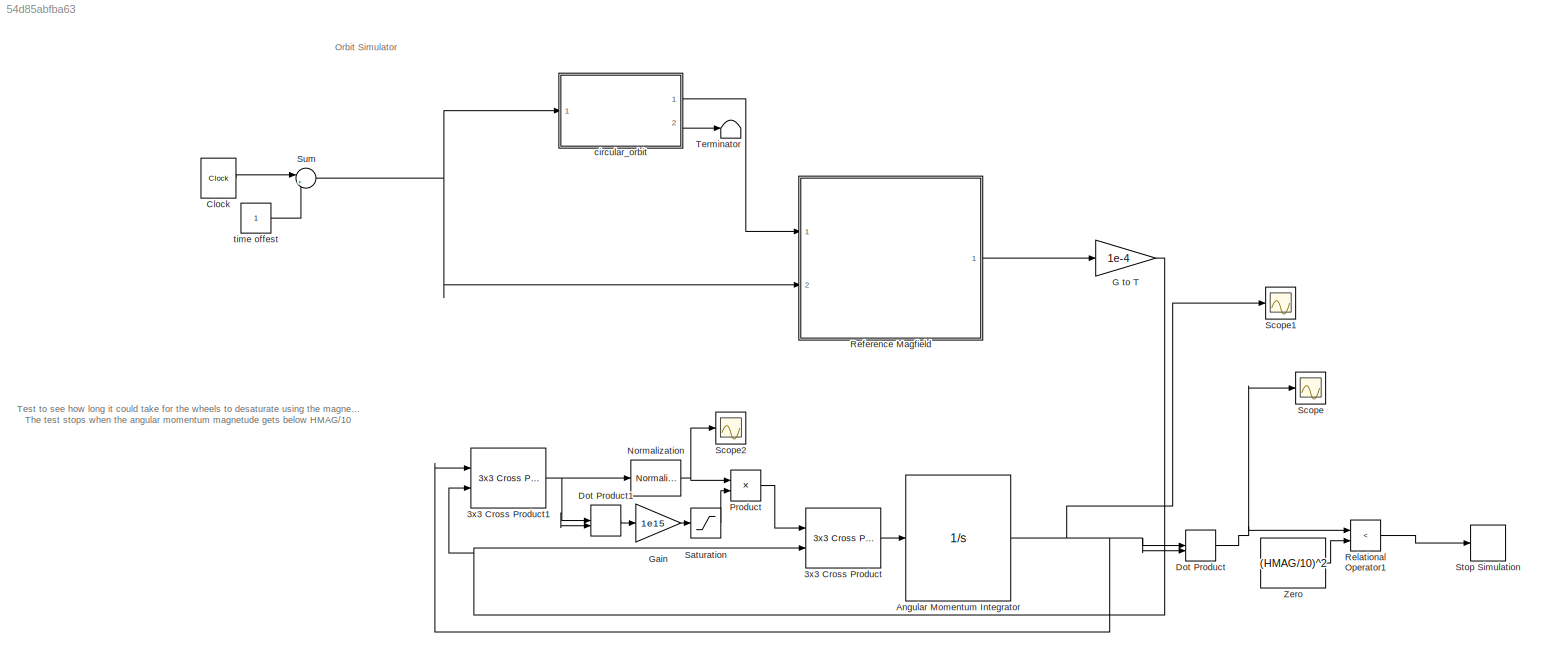
MODEL slx_54d85abfba63
KIND model
CONFIG AbsTol = auto
CONFIG EnableMultiTasking = off
CONFIG FixedStep = 10
CONFIG MaxStep = auto
CONFIG MinStep = auto
CONFIG RelTol = 1e-3
CONFIG SampleTimeConstraint = Unconstrained
CONFIG Solver = FixedStepAuto
CONFIG SolverName = FixedStepAuto
CONFIG StartTime = 0.0
CONFIG StopTime = 10000
BLOCK [Reference] 3x3 Cross Product  REF=sharedutil/3x3 Cross Product
  Ports = [2, 1]
  SourceBlock = sharedutil/3x3 Cross Product
  SourceProductBaseCode = AE
  SourceProductName = Aerospace Blockset
  SourceType = CrossProduct
BLOCK [Reference] 3x3 Cross Product1  REF=sharedutil/3x3 Cross Product
  Ports = [2, 1]
  SourceBlock = sharedutil/3x3 Cross Product
  SourceProductBaseCode = AE
  SourceProductName = Aerospace Blockset
  SourceType = CrossProduct
BLOCK [Integrator] Angular Momentum Integrator
  InitialCondition = hCom_sat_eci
  Ports = [1, 1]
BLOCK [Clock] Clock
BLOCK [DotProduct] Dot Product
  OutDataTypeStr = Inherit: Inherit via internal rule
BLOCK [DotProduct] Dot Product1
  OutDataTypeStr = Inherit: Inherit via internal rule
BLOCK [Gain] G to T
  Gain = 1e-4
  OutDataTypeStr = Inherit: Inherit via internal rule
  ParamDataTypeStr = Inherit: Inherit via internal rule
  SaturateOnIntegerOverflow = off
BLOCK [Gain] Gain
  Gain = 1e15
  OutDataTypeStr = Inherit: Inherit via internal rule
  ParamDataTypeStr = Inherit: Inherit via internal rule
  SaturateOnIntegerOverflow = off
BLOCK [Reference] Normalization  REF=dspmathops/Normalization
  Ports = [1, 1]
  SourceBlock = dspmathops/Normalization
  SourceProductBaseCode = DS
  SourceProductName = DSP System Toolbox
  SourceType = Normalization
BLOCK [Product] Product
  InputSameDT = off
  OutDataTypeStr = Inherit: Inherit via internal rule
  Ports = [2, 1]
  RndMeth = Floor
  SaturateOnIntegerOverflow = off
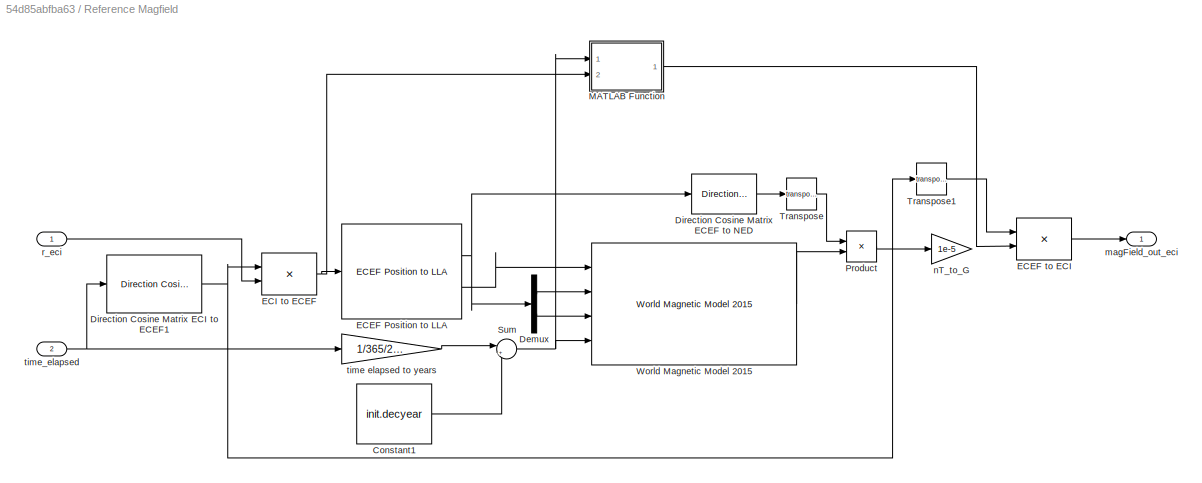
BLOCK [SubSystem] Reference Magfield 
  Ports = [2, 1]
  RequestExecContextInheritance = off
BLOCK [Constant] Reference Magfield /Constant1
  Value = init.decyear
BLOCK [Demux] Reference Magfield /Demux
  Commented = on
  DisplayOption = bar
  Outputs = 2
  Ports = [1, 2]
BLOCK [Reference] Reference Magfield /Direction Cosine Matrix ECEF to NED  REF=aerolibtransform2/Direction Cosine Matrix
ECEF to NED
  Commented = on
  Ports = [1, 1]
  SourceBlock = aerolibtransform2/Direction Cosine Matrix\nECEF to NED
  SourceProductBaseCode = AE
  SourceProductName = Aerospace Blockset
  SourceType = DCM ECEF to NED
BLOCK [Reference] Reference Magfield /Direction Cosine Matrix ECI to ECEF1  REF=aerolibtransform2/Direction Cosine Matrix
ECI to ECEF
  AttributesFormatString = %<red>
  Ports = [1, 1]
  SourceBlock = aerolibtransform2/Direction Cosine Matrix\nECI to ECEF
  SourceProductBaseCode = AE
  SourceProductName = Aerospace Blockset
  SourceType = DCMECItoECEF
BLOCK [Reference] Reference Magfield /ECEF Position to LLA  REF=aerolibtransform2/ECEF Position to LLA
  Commented = on
  Ports = [1, 2]
  SourceBlock = aerolibtransform2/ECEF Position to LLA
  SourceProductBaseCode = AE
  SourceProductName = Aerospace Blockset
  SourceType = ECEF to LLA
BLOCK [Product] Reference Magfield /ECEF to ECI
  InputSameDT = off
  Multiplication = Matrix(*)
  OutDataTypeStr = double
  Ports = [2, 1]
  RndMeth = Floor
  SaturateOnIntegerOverflow = off
BLOCK [Product] Reference Magfield /ECI to ECEF
  InputSameDT = off
  Multiplication = Matrix(*)
  OutDataTypeStr = double
  Ports = [2, 1]
  RndMeth = Floor
  SaturateOnIntegerOverflow = off
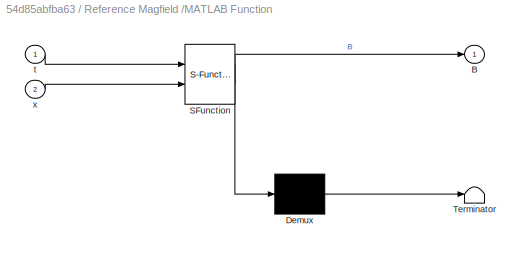
BLOCK [SubSystem] Reference Magfield /MATLAB Function
  ErrorFcn = Stateflow.Translate.translate
  PermitHierarchicalResolution = ExplicitOnly
  Ports = [2, 1]
  RequestExecContextInheritance = off
  SFBlockType = MATLAB Function
  TreatAsAtomicUnit = on
BLOCK [Demux] Reference Magfield /MATLAB Function/ Demux 
  Outputs = 1
  Ports = [1, 1]
BLOCK [S-Function] Reference Magfield /MATLAB Function/ SFunction 
  EnableBusSupport = on
  FunctionName = sf_sfun
  PortCounts = [2 2]
  Ports = [2, 2]
  SFcnIsStateOwnerBlock = off
  SFunctionDeploymentMode = off
  Tag = Stateflow S-Function desatsim 2
BLOCK [Terminator] Reference Magfield /MATLAB Function/ Terminator 
BLOCK [Outport] Reference Magfield /MATLAB Function/B
  IconDisplay = Port number
BLOCK [Inport] Reference Magfield /MATLAB Function/t
  IconDisplay = Port number
BLOCK [Inport] Reference Magfield /MATLAB Function/x
  IconDisplay = Port number
  Port = 2
BLOCK [Product] Reference Magfield /Product
  Commented = on
  InputSameDT = off
  Multiplication = Matrix(*)
  OutDataTypeStr = Inherit: Inherit via internal rule
  Ports = [2, 1]
  RndMeth = Floor
  SaturateOnIntegerOverflow = off
BLOCK [Sum] Reference Magfield /Sum
  IconShape = round
  InputSameDT = off
  Inputs = |++
  OutDataTypeStr = Inherit: Inherit via internal rule
  Ports = [2, 1]
  SaturateOnIntegerOverflow = off
BLOCK [Math] Reference Magfield /Transpose
  Commented = on
  Operator = transpose
  Ports = [1, 1]
BLOCK [Math] Reference Magfield /Transpose1
  Operator = transpose
  Ports = [1, 1]
BLOCK [Reference] Reference Magfield /World Magnetic Model 2015  REF=aerolibgravity2/World Magnetic Model 2015
  Commented = on
  Ports = [4, 1]
  SourceBlock = aerolibgravity2/World Magnetic Model 2015
  SourceProductBaseCode = AE
  SourceProductName = Aerospace Blockset
  SourceType = WorldMagneticModel2015
BLOCK [Outport] Reference Magfield /magField_out_eci
  IconDisplay = Port number
  PortDimensions = 3
  Unit = G
BLOCK [Gain] Reference Magfield /nT_to_G
  Commented = on
  Gain = 1e-5
  OutDataTypeStr = Inherit: Inherit via internal rule
  ParamDataTypeStr = Inherit: Inherit via internal rule
  SaturateOnIntegerOverflow = off
BLOCK [Inport] Reference Magfield /r_eci
  IconDisplay = Port number
  PortDimensions = 3
  Unit = m
BLOCK [Gain] Reference Magfield /time elapsed to years
  Gain = 1/365/24/3600
  OutDataTypeStr = Inherit: Inherit via internal rule
  ParamDataTypeStr = Inherit: Inherit via internal rule
  SaturateOnIntegerOverflow = off
BLOCK [Inport] Reference Magfield /time_elapsed
  IconDisplay = Port number
  Port = 2
  PortDimensions = 1
  Unit = s
BLOCK [RelationalOperator] Relational Operator1
  InputSameDT = off
  Operator = <
  OutDataTypeStr = boolean
  Ports = [2, 1]
  RndMeth = Simplest
BLOCK [Saturate] Saturation
  InputPortMap = u0
  LowerLimit = 0
  Ports = [1, 1]
  UpperLimit = 0.08
BLOCK [Scope] Scope
  Floating = off
  NumInputPorts = 1
  Ports = [1]
  ScopeSpecificationString = Simulink.scopes.TimeScopeBlockCfg('CurrentConfiguration', extmgr.ConfigurationSet(extmgr.Configuration('Core','General UI',true),extmgr.Configuration('Core','Source UI',true),extmgr.Configuration('Sources','WiredSimulink',true),extmgr.Configuration('Visuals','Time Domain',true,'SerializedDisplays',{struct('MinYLimReal','-0.000005','MaxYLimReal','0.000051','YLabelReal','','MinYLimMag','0.000000','M...<+1413ch>
BLOCK [Scope] Scope1
  Floating = off
  NumInputPorts = 1
  Ports = [1]
  ScopeSpecificationString = Simulink.scopes.TimeScopeBlockCfg('CurrentConfiguration', extmgr.ConfigurationSet(extmgr.Configuration('Core','General UI',true),extmgr.Configuration('Core','Source UI',true),extmgr.Configuration('Sources','WiredSimulink',true,'DataLoggingVariableName','ScopeData1'),extmgr.Configuration('Visuals','Time Domain',true,'SerializedDisplays',{struct('MinYLimReal','-0.00109','MaxYLimReal','0.00719','YLab...<+1481ch>
BLOCK [Scope] Scope2
  Floating = off
  NumInputPorts = 1
  Ports = [1]
  ScopeSpecificationString = Simulink.scopes.TimeScopeBlockCfg('CurrentConfiguration', extmgr.ConfigurationSet(extmgr.Configuration('Core','General UI',true),extmgr.Configuration('Core','Source UI',true),extmgr.Configuration('Sources','WiredSimulink',true,'DataLoggingVariableName','ScopeData2'),extmgr.Configuration('Visuals','Time Domain',true,'SerializedDisplays',{struct('MinYLimReal','-1.24981','MaxYLimReal','1.24832','YLab...<+1458ch>
BLOCK [Stop] Stop Simulation
BLOCK [Sum] Sum
  IconShape = round
  InputSameDT = off
  Inputs = |++
  OutDataTypeStr = Inherit: Inherit via internal rule
  Ports = [2, 1]
  SaturateOnIntegerOverflow = off
BLOCK [Terminator] Terminator
BLOCK [Constant] Zero
  Value = (HMAG/10)^2
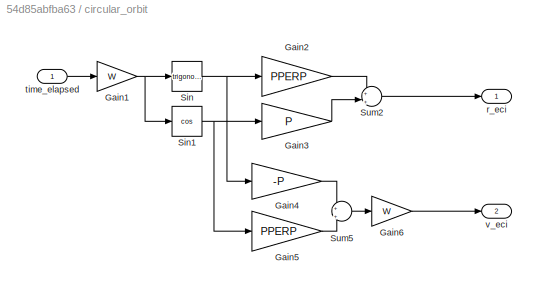
BLOCK [SubSystem] circular_orbit
  Ports = [1, 2]
  RequestExecContextInheritance = off
BLOCK [Gain] circular_orbit/Gain1
  Gain = W
  OutDataTypeStr = Inherit: Inherit via internal rule
  ParamDataTypeStr = Inherit: Inherit via internal rule
  SaturateOnIntegerOverflow = off
BLOCK [Gain] circular_orbit/Gain2
  Gain = PPERP
  OutDataTypeStr = Inherit: Inherit via internal rule
  ParamDataTypeStr = Inherit: Inherit via internal rule
  SaturateOnIntegerOverflow = off
BLOCK [Gain] circular_orbit/Gain3
  Gain = P
  OutDataTypeStr = Inherit: Inherit via internal rule
  ParamDataTypeStr = Inherit: Inherit via internal rule
  SaturateOnIntegerOverflow = off
BLOCK [Gain] circular_orbit/Gain4
  Gain = -P
  OutDataTypeStr = Inherit: Inherit via internal rule
  ParamDataTypeStr = Inherit: Inherit via internal rule
  SaturateOnIntegerOverflow = off
BLOCK [Gain] circular_orbit/Gain5
  Gain = PPERP
  OutDataTypeStr = Inherit: Inherit via internal rule
  ParamDataTypeStr = Inherit: Inherit via internal rule
  SaturateOnIntegerOverflow = off
BLOCK [Gain] circular_orbit/Gain6
  Gain = W
  OutDataTypeStr = Inherit: Inherit via internal rule
  ParamDataTypeStr = Inherit: Inherit via internal rule
  SaturateOnIntegerOverflow = off
BLOCK [Trigonometry] circular_orbit/Sin
  Ports = [1, 1]
BLOCK [Trigonometry] circular_orbit/Sin1
  Operator = cos
  Ports = [1, 1]
BLOCK [Sum] circular_orbit/Sum2
  IconShape = round
  InputSameDT = off
  Inputs = +|+
  OutDataTypeStr = Inherit: Inherit via internal rule
  Ports = [2, 1]
  SaturateOnIntegerOverflow = off
BLOCK [Sum] circular_orbit/Sum5
  IconShape = round
  InputSameDT = off
  Inputs = +|+
  OutDataTypeStr = Inherit: Inherit via internal rule
  Ports = [2, 1]
  SaturateOnIntegerOverflow = off
BLOCK [Outport] circular_orbit/r_eci
  IconDisplay = Port number
  PortDimensions = 3
  Unit = m
BLOCK [Inport] circular_orbit/time_elapsed
  IconDisplay = Port number
  PortDimensions = 1
  Unit = s
BLOCK [Outport] circular_orbit/v_eci
  IconDisplay = Port number
  Port = 2
  PortDimensions = 3
  Unit = m/s
BLOCK [Constant] time offest
ANNOTATION (root): Test to see how long it could take for the wheels to desaturate using the magnetoquers The test stops when the angular momentum magnetude gets below HMAG/10
ANNOTATION (root): Orbit Simulator
NET 3x3 Cross Product1:1 -> Dot Product1:1, Dot Product1:2, Normalization:1
LINE 3x3 Cross Product:1 -> Angular Momentum Integrator:1
NET Angular Momentum Integrator:1 -> 3x3 Cross Product1:1, Dot Product:1, Dot Product:2, Scope1:1
LINE Clock:1 -> Sum:1
LINE Dot Product1:1 -> Gain:1
NET Dot Product:1 -> Relational Operator1:1, Scope:1
NET G to T:1 -> 3x3 Cross Product1:2, 3x3 Cross Product:2
LINE Gain:1 -> Saturation:1
NET Normalization:1 -> Product:1, Scope2:1
LINE Product:1 -> 3x3 Cross Product:1
LINE Reference Magfield /Constant1:1 -> Reference Magfield /Sum:2
LINE Reference Magfield /Demux:1 -> Reference Magfield /World Magnetic Model 2015:2
LINE Reference Magfield /Demux:2 -> Reference Magfield /World Magnetic Model 2015:3
LINE Reference Magfield /Direction Cosine Matrix ECEF to NED:1 -> Reference Magfield /Transpose:1
NET Reference Magfield /Direction Cosine Matrix ECI to ECEF1:1 -> Reference Magfield /ECI to ECEF:1, Reference Magfield /Transpose1:1
NET Reference Magfield /ECEF Position to LLA:1 -> Reference Magfield /Demux:1, Reference Magfield /Direction Cosine Matrix ECEF to NED:1
LINE Reference Magfield /ECEF Position to LLA:2 -> Reference Magfield /World Magnetic Model 2015:1
LINE Reference Magfield /ECEF to ECI:1 -> Reference Magfield /magField_out_eci:1
NET Reference Magfield /ECI to ECEF:1 -> Reference Magfield /ECEF Position to LLA:1, Reference Magfield /MATLAB Function:2
LINE Reference Magfield /MATLAB Function:1 -> Reference Magfield /ECEF to ECI:2
LINE Reference Magfield /Product:1 -> Reference Magfield /nT_to_G:1
NET Reference Magfield /Sum:1 -> Reference Magfield /MATLAB Function:1, Reference Magfield /World Magnetic Model 2015:4
LINE Reference Magfield /Transpose1:1 -> Reference Magfield /ECEF to ECI:1
LINE Reference Magfield /Transpose:1 -> Reference Magfield /Product:1
LINE Reference Magfield /World Magnetic Model 2015:1 -> Reference Magfield /Product:2
LINE Reference Magfield /r_eci:1 -> Reference Magfield /ECI to ECEF:2
LINE Reference Magfield /time elapsed to years:1 -> Reference Magfield /Sum:1
NET Reference Magfield /time_elapsed:1 -> Reference Magfield /Direction Cosine Matrix ECI to ECEF1:1, Reference Magfield /time elapsed to years:1
LINE Reference Magfield :1 -> G to T:1
LINE Relational Operator1:1 -> Stop Simulation:1
LINE Saturation:1 -> Product:2
NET Sum:1 -> Reference Magfield :2, circular_orbit:1
LINE Zero:1 -> Relational Operator1:2
NET circular_orbit/Gain1:1 -> circular_orbit/Sin1:1, circular_orbit/Sin:1
LINE circular_orbit/Gain2:1 -> circular_orbit/Sum2:1
LINE circular_orbit/Gain3:1 -> circular_orbit/Sum2:2
LINE circular_orbit/Gain4:1 -> circular_orbit/Sum5:1
LINE circular_orbit/Gain5:1 -> circular_orbit/Sum5:2
LINE circular_orbit/Gain6:1 -> circular_orbit/v_eci:1
NET circular_orbit/Sin1:1 -> circular_orbit/Gain3:1, circular_orbit/Gain5:1
NET circular_orbit/Sin:1 -> circular_orbit/Gain2:1, circular_orbit/Gain4:1
LINE circular_orbit/Sum2:1 -> circular_orbit/r_eci:1
LINE circular_orbit/Sum5:1 -> circular_orbit/Gain6:1
LINE circular_orbit/time_elapsed:1 -> circular_orbit/Gain1:1
LINE circular_orbit:1 -> Reference Magfield :1
LINE circular_orbit:2 -> Terminator:1
LINE time offest:1 -> Sum:2
note: NET lines group one-source signal fan-out (src -> all destinations, sorted); 1:1 wires keep LINE
CHART Reference Magfield /MATLAB Function states=1 transitions=1
  STATE_LABEL 'eML_blk_kernel()'
  STATE_LABEL 'SCRIPT:\nfunction B = fcn(t,x)\n%sds\nB= refMag(t,x);\n\n'
